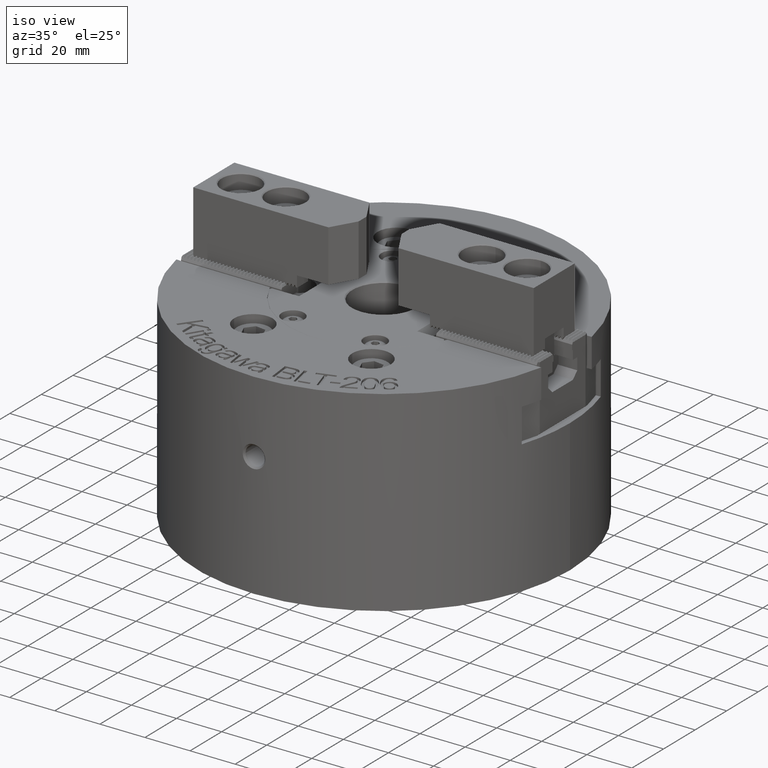
[diagram: clean part render]
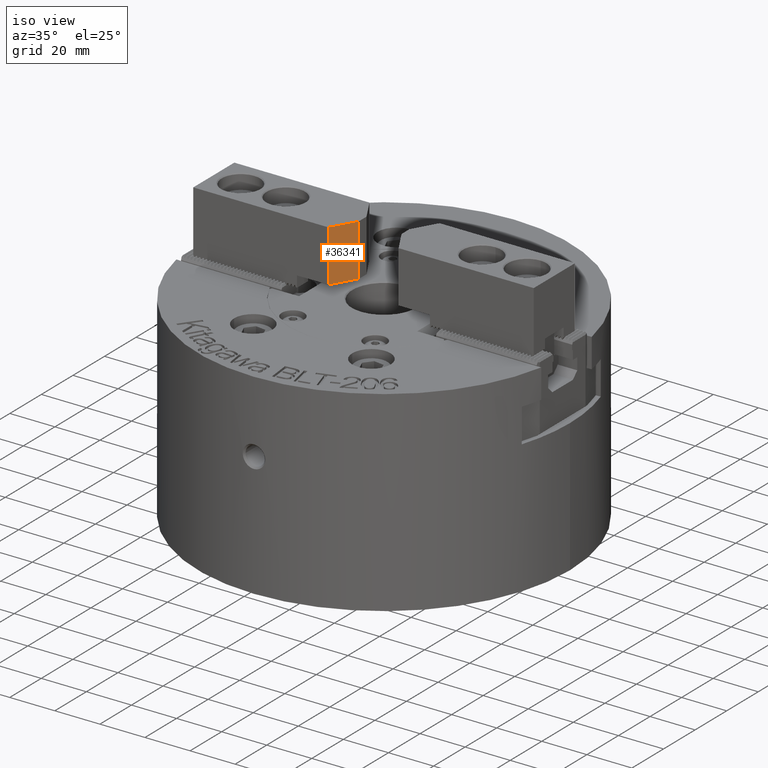
[diagram: same view with one face highlighted and labeled with its STEP entity id]
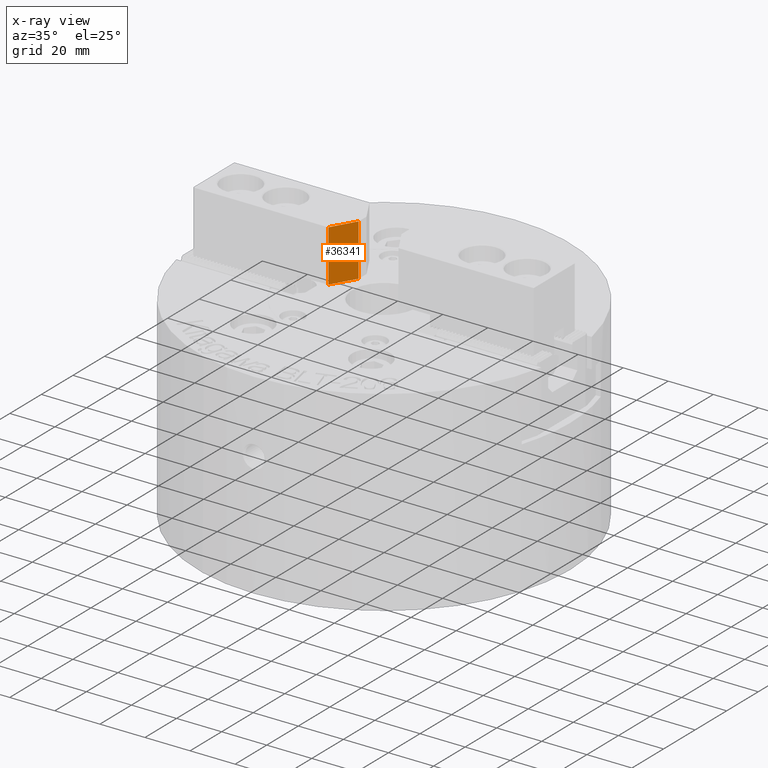
[diagram: x-ray of the same camera — body ghosted, the highlighted face saturated]
A machine part, iso view. The second image highlights one B-rep face of the part: STEP entity #36341.
The next image is the same camera in x-ray: the body ghosted, the highlighted face saturated — about 0% of this face is hidden behind the body in this view.
In plain terms, the highlighted planar face has unit normal (-0.866, 0.5, 0).
Its self-contained STEP definition (entity closure, byte-faithful):
#10593=ORIENTED_EDGE('',*,*,#16955,.F.);
#10594=ORIENTED_EDGE('',*,*,#17214,.F.);
#10595=ORIENTED_EDGE('',*,*,#17215,.T.);
#10596=ORIENTED_EDGE('',*,*,#17216,.T.);
#16955=EDGE_CURVE('',#20816,#20817,#25009,.T.);
#17214=EDGE_CURVE('',#20913,#20816,#25237,.T.);
#17215=EDGE_CURVE('',#20913,#20914,#25238,.T.);
#17216=EDGE_CURVE('',#20914,#20817,#25239,.T.);
#20816=VERTEX_POINT('',#60193);
#20817=VERTEX_POINT('',#60195);
#20913=VERTEX_POINT('',#60610);
#20914=VERTEX_POINT('',#60612);
#25009=LINE('',#60194,#29404);
#25237=LINE('',#60609,#29632);
#25238=LINE('',#60611,#29633);
#25239=LINE('',#60613,#29634);
#29404=VECTOR('',#46894,1000.);
#29632=VECTOR('',#47304,1000.);
#29633=VECTOR('',#47305,1000.);
#29634=VECTOR('',#47306,1000.);
#31393=EDGE_LOOP('',(#10593,#10594,#10595,#10596));
#33353=FACE_BOUND('',#31393,.T.);
#34805=PLANE('',#38733);
#36341=ADVANCED_FACE('',(#33353),#34805,.F.);
#38733=AXIS2_PLACEMENT_3D('',#60608,#47302,#47303);
#46894=DIRECTION('',(0.,0.,1.));
#47302=DIRECTION('',(-0.866025403784439,0.5,0.));
#47303=DIRECTION('',(-0.5,-0.866025403784439,0.));
#47304=DIRECTION('',(-0.5,-0.866025403784439,0.));
#47305=DIRECTION('',(0.,0.,1.));
#47306=DIRECTION('',(-0.5,-0.866025403784438,0.));
#60193=CARTESIAN_POINT('',(-15.562177826491,-13.,6.2000000000016));
#60194=CARTESIAN_POINT('',(-15.562177826491,-13.,-18.7999999999984));
#60195=CARTESIAN_POINT('',(-15.562177826491,-13.,29.2000000000016));
#60608=CARTESIAN_POINT('',(-9.49999999999997,-2.49999999999999,-18.7999999999984));
#60609=CARTESIAN_POINT('',(-22.3193920339161,-24.7038383248865,6.2000000000016));
#60610=CARTESIAN_POINT('',(-9.49999999999997,-2.49999999999999,6.2000000000016));
#60611=CARTESIAN_POINT('',(-9.49999999999997,-2.49999999999999,-18.7999999999984));
#60612=CARTESIAN_POINT('',(-9.49999999999997,-2.49999999999999,29.2000000000016));
#60613=CARTESIAN_POINT('',(-9.49999999999997,-2.49999999999999,29.2000000000016));